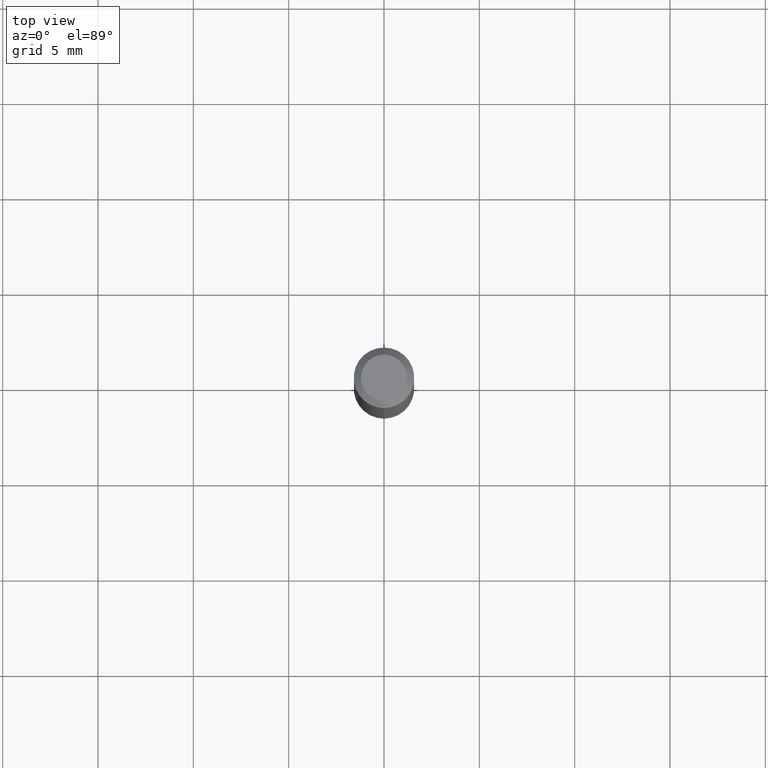
[diagram: clean part render]
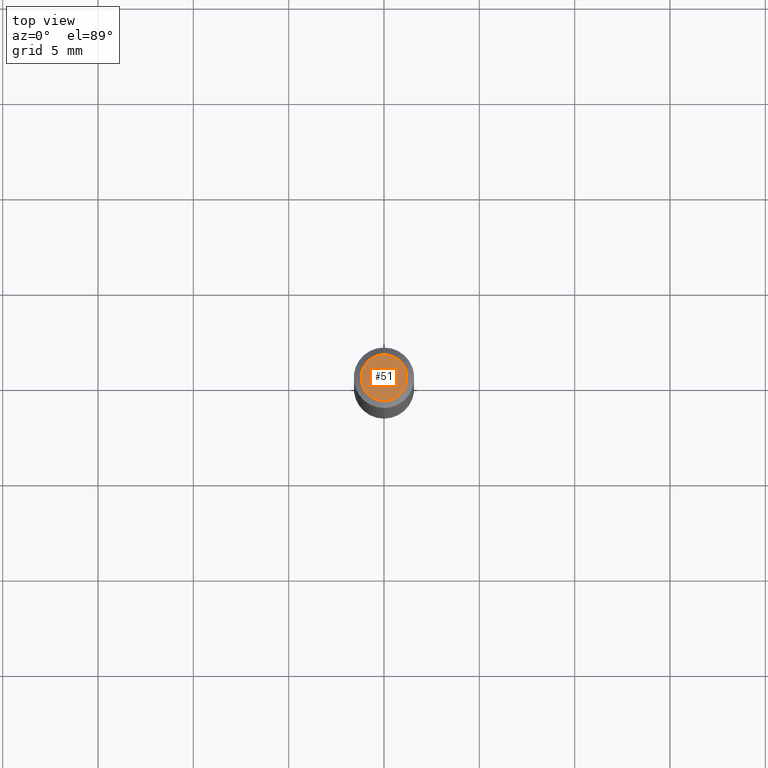
[diagram: same view with one face highlighted and labeled with its STEP entity id]
A machine part, top view. The second image highlights one B-rep face of the part: STEP entity #51.
In plain terms, the highlighted planar face has unit normal (0, -0, -1).
Its self-contained STEP definition (entity closure, byte-faithful):
#51 = ADVANCED_FACE ( 'NONE', ( #152 ), #154, .F. ) ;
#59 = DIRECTION ( 'NONE',  ( -2.445480460082520915E-29, 3.491464649798792437E-15, 1.000000000000000000 ) ) ;
#121 = AXIS2_PLACEMENT_3D ( 'NONE', #216, #311, #219 ) ;
#133 = CIRCLE ( 'NONE', #270, 0.04749999999999999362 ) ;
#134 = VERTEX_POINT ( 'NONE', #429 ) ;
#152 = FACE_OUTER_BOUND ( 'NONE', #161, .T. ) ;
#154 = PLANE ( 'NONE',  #121 ) ;
#161 = EDGE_LOOP ( 'NONE', ( #238, #433 ) ) ;
#182 = EDGE_CURVE ( 'NONE', #494, #134, #133, .T. ) ;
#216 = CARTESIAN_POINT ( 'NONE',  ( 3.316907271900976096E-16, 0.04749999999999999362, -1.702751270261615935E-16 ) ) ;
#219 = DIRECTION ( 'NONE',  ( 6.982962677686265922E-15, 1.000000000000000000, -3.491464649798792832E-15 ) ) ;
#238 = ORIENTED_EDGE ( 'NONE', *, *, #369, .T. ) ;
#270 = AXIS2_PLACEMENT_3D ( 'NONE', #316, #476, #284 ) ;
#284 = DIRECTION ( 'NONE',  ( -6.982962677686266711E-15, -1.000000000000000000, 3.491464649798792437E-15 ) ) ;
#311 = DIRECTION ( 'NONE',  ( 2.445480460082520354E-29, -3.491464649798792832E-15, -1.000000000000000000 ) ) ;
#316 = CARTESIAN_POINT ( 'NONE',  ( 2.166967703667277052E-46, -3.093826042819683228E-32, -8.861112321437868049E-18 ) ) ;
#321 = CIRCLE ( 'NONE', #372, 0.04749999999999999362 ) ;
#369 = EDGE_CURVE ( 'NONE', #134, #494, #321, .T. ) ;
#372 = AXIS2_PLACEMENT_3D ( 'NONE', #412, #59, #453 ) ;
#412 = CARTESIAN_POINT ( 'NONE',  ( 2.166967703667277052E-46, -3.093826042819683228E-32, -8.861112321437868049E-18 ) ) ;
#420 = CARTESIAN_POINT ( 'NONE',  ( -3.773273898774340269E-16, -0.04749999999999999362, 1.569834585440047590E-16 ) ) ;
#429 = CARTESIAN_POINT ( 'NONE',  ( 3.840629472727447874E-16, 0.04749999999999999362, -1.747056831868805136E-16 ) ) ;
#433 = ORIENTED_EDGE ( 'NONE', *, *, #182, .T. ) ;
#453 = DIRECTION ( 'NONE',  ( -6.982962677686266711E-15, -1.000000000000000000, 3.491464649798792437E-15 ) ) ;
#476 = DIRECTION ( 'NONE',  ( -2.445480460082520915E-29, 3.491464649798792437E-15, 1.000000000000000000 ) ) ;
#494 = VERTEX_POINT ( 'NONE', #420 ) ;